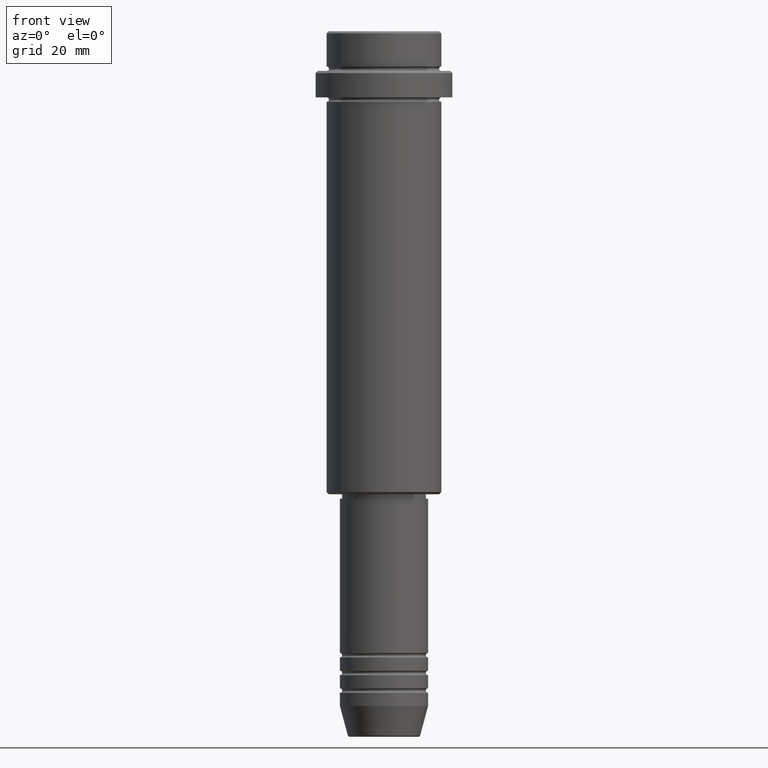
[diagram: clean part render]
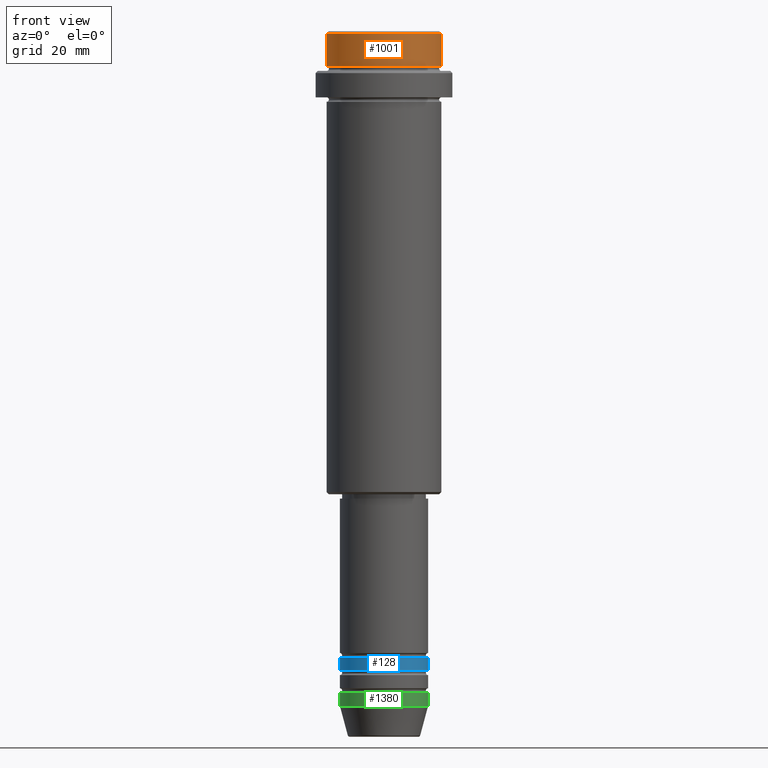
[diagram: same view with three faces highlighted in distinct colors, each labeled with its STEP entity id]
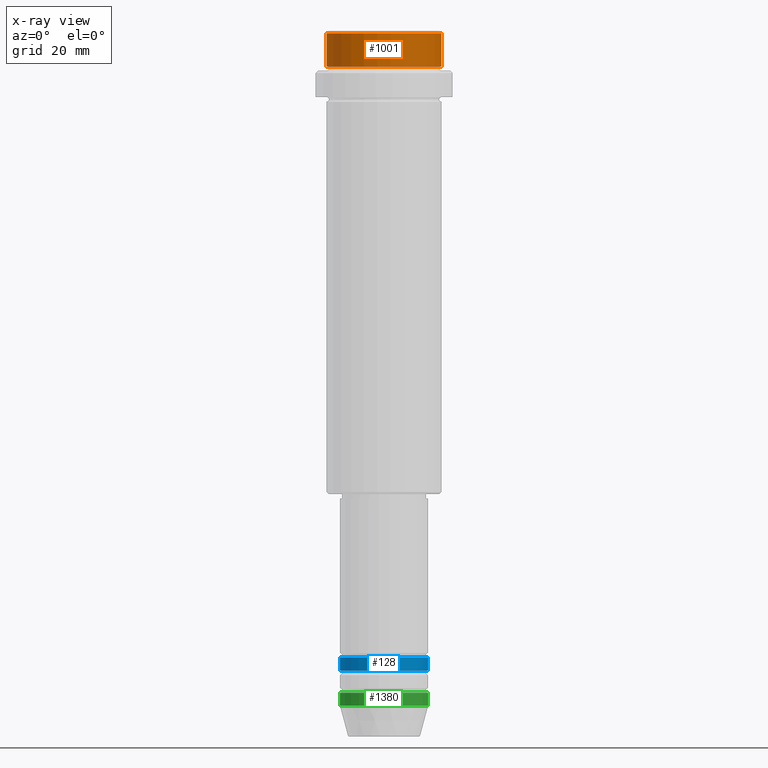
[diagram: x-ray of the same camera — body ghosted, the three highlighted faces saturated]
A machine part, front view with three faces highlighted in distinct colors.
The next image is the same camera in x-ray (body ghosted, the three faces saturated) — at least one of them is partly hidden behind the body in this view.
Their STEP definitions:

[orange] entity #1001 — the highlighted cylindrical surface (partial cylindrical patch) has radius 13 mm, axis along (-0, -0, 1).
#119 = EDGE_LOOP ( 'NONE', ( #654, #1260, #299, #1121 ) ) ;
#152 = DIRECTION ( 'NONE',  ( -0.000000000000000000, -0.000000000000000000, 1.000000000000000000 ) ) ;
#196 = CARTESIAN_POINT ( 'NONE',  ( -12.99999999999999822, 1.592040838891558898E-15, 0.000000000000000000 ) ) ;
#199 = CARTESIAN_POINT ( 'NONE',  ( -12.99999999999999822, 1.592040838891558898E-15, -7.999999999999998224 ) ) ;
#273 = VECTOR ( 'NONE', #615, 1000.000000000000000 ) ;
#287 = DIRECTION ( 'NONE',  ( 1.000000000000000000, 0.000000000000000000, 0.000000000000000000 ) ) ;
#299 = ORIENTED_EDGE ( 'NONE', *, *, #395, .T. ) ;
#330 = EDGE_CURVE ( 'NONE', #972, #341, #732, .T. ) ;
#341 = VERTEX_POINT ( 'NONE', #620 ) ;
#365 = CIRCLE ( 'NONE', #506, 12.99999999999999822 ) ;
#395 = EDGE_CURVE ( 'NONE', #1152, #545, #887, .T. ) ;
#478 = AXIS2_PLACEMENT_3D ( 'NONE', #507, #941, #945 ) ;
#489 = EDGE_CURVE ( 'NONE', #545, #341, #1345, .T. ) ;
#506 = AXIS2_PLACEMENT_3D ( 'NONE', #962, #1290, #951 ) ;
#507 = CARTESIAN_POINT ( 'NONE',  ( 0.000000000000000000, 0.000000000000000000, 0.000000000000000000 ) ) ;
#545 = VERTEX_POINT ( 'NONE', #1002 ) ;
#563 = CARTESIAN_POINT ( 'NONE',  ( 0.000000000000000000, 0.000000000000000000, -0.4999999999999622524 ) ) ;
#615 = DIRECTION ( 'NONE',  ( -0.000000000000000000, -0.000000000000000000, 1.000000000000000000 ) ) ;
#620 = CARTESIAN_POINT ( 'NONE',  ( -12.99999999999999822, 1.592040838891558898E-15, -0.4999999999999622524 ) ) ;
#654 = ORIENTED_EDGE ( 'NONE', *, *, #330, .F. ) ;
#732 = LINE ( 'NONE', #196, #273 ) ;
#746 = CYLINDRICAL_SURFACE ( 'NONE', #478, 12.99999999999999822 ) ;
#848 = FACE_OUTER_BOUND ( 'NONE', #119, .T. ) ;
#887 = LINE ( 'NONE', #1337, #1104 ) ;
#894 = DIRECTION ( 'NONE',  ( 0.000000000000000000, 0.000000000000000000, -1.000000000000000000 ) ) ;
#941 = DIRECTION ( 'NONE',  ( -0.000000000000000000, -0.000000000000000000, 1.000000000000000000 ) ) ;
#945 = DIRECTION ( 'NONE',  ( 1.000000000000000000, 0.000000000000000000, 0.000000000000000000 ) ) ;
#951 = DIRECTION ( 'NONE',  ( 1.000000000000000000, 0.000000000000000000, 0.000000000000000000 ) ) ;
#962 = CARTESIAN_POINT ( 'NONE',  ( 0.000000000000000000, 0.000000000000000000, -7.999999999999998224 ) ) ;
#972 = VERTEX_POINT ( 'NONE', #199 ) ;
#1001 = ADVANCED_FACE ( 'NONE', ( #848 ), #746, .T. ) ;
#1002 = CARTESIAN_POINT ( 'NONE',  ( 12.99999999999999822, 0.000000000000000000, -0.4999999999999622524 ) ) ;
#1104 = VECTOR ( 'NONE', #152, 1000.000000000000000 ) ;
#1121 = ORIENTED_EDGE ( 'NONE', *, *, #489, .T. ) ;
#1134 = AXIS2_PLACEMENT_3D ( 'NONE', #563, #894, #287 ) ;
#1152 = VERTEX_POINT ( 'NONE', #1219 ) ;
#1219 = CARTESIAN_POINT ( 'NONE',  ( 12.99999999999999822, 0.000000000000000000, -7.999999999999998224 ) ) ;
#1260 = ORIENTED_EDGE ( 'NONE', *, *, #1342, .T. ) ;
#1290 = DIRECTION ( 'NONE',  ( -0.000000000000000000, -0.000000000000000000, 1.000000000000000000 ) ) ;
#1337 = CARTESIAN_POINT ( 'NONE',  ( 12.99999999999999822, 0.000000000000000000, 0.000000000000000000 ) ) ;
#1342 = EDGE_CURVE ( 'NONE', #972, #1152, #365, .T. ) ;
#1345 = CIRCLE ( 'NONE', #1134, 12.99999999999999822 ) ;

[blue] entity #128 — the highlighted cylindrical surface (partial cylindrical patch) has radius 10 mm, axis along (-0, -0, 1).
#6 = ORIENTED_EDGE ( 'NONE', *, *, #1090, .T. ) ;
#15 = DIRECTION ( 'NONE',  ( -0.000000000000000000, -0.000000000000000000, 1.000000000000000000 ) ) ;
#30 = ORIENTED_EDGE ( 'NONE', *, *, #505, .F. ) ;
#77 = CARTESIAN_POINT ( 'NONE',  ( 10.00000000000000000, 0.000000000000000000, -141.9999999999999147 ) ) ;
#78 = EDGE_CURVE ( 'NONE', #270, #712, #1360, .T. ) ;
#90 = AXIS2_PLACEMENT_3D ( 'NONE', #752, #1194, #219 ) ;
#106 = DIRECTION ( 'NONE',  ( 1.000000000000000000, 0.000000000000000000, 0.000000000000000000 ) ) ;
#122 = ORIENTED_EDGE ( 'NONE', *, *, #78, .F. ) ;
#128 = ADVANCED_FACE ( 'NONE', ( #1109 ), #812, .T. ) ;
#219 = DIRECTION ( 'NONE',  ( 1.000000000000000000, 0.000000000000000000, 0.000000000000000000 ) ) ;
#226 = DIRECTION ( 'NONE',  ( -0.000000000000000000, -0.000000000000000000, 1.000000000000000000 ) ) ;
#248 = VECTOR ( 'NONE', #702, 1000.000000000000000 ) ;
#259 = ORIENTED_EDGE ( 'NONE', *, *, #577, .T. ) ;
#270 = VERTEX_POINT ( 'NONE', #721 ) ;
#386 = CARTESIAN_POINT ( 'NONE',  ( 10.00000000000000000, 0.000000000000000000, -144.9999999999999147 ) ) ;
#462 = CARTESIAN_POINT ( 'NONE',  ( 10.00000000000000000, 0.000000000000000000, 0.000000000000000000 ) ) ;
#474 = CIRCLE ( 'NONE', #90, 10.00000000000000000 ) ;
#505 = EDGE_CURVE ( 'NONE', #712, #1339, #851, .T. ) ;
#532 = AXIS2_PLACEMENT_3D ( 'NONE', #896, #1338, #787 ) ;
#577 = EDGE_CURVE ( 'NONE', #270, #659, #474, .T. ) ;
#659 = VERTEX_POINT ( 'NONE', #386 ) ;
#702 = DIRECTION ( 'NONE',  ( -0.000000000000000000, -0.000000000000000000, 1.000000000000000000 ) ) ;
#712 = VERTEX_POINT ( 'NONE', #1296 ) ;
#721 = CARTESIAN_POINT ( 'NONE',  ( -10.00000000000000000, 1.224646799147353256E-15, -144.9999999999999147 ) ) ;
#752 = CARTESIAN_POINT ( 'NONE',  ( 0.000000000000000000, 0.000000000000000000, -144.9999999999999147 ) ) ;
#780 = LINE ( 'NONE', #462, #1066 ) ;
#787 = DIRECTION ( 'NONE',  ( 1.000000000000000000, 0.000000000000000000, 0.000000000000000000 ) ) ;
#812 = CYLINDRICAL_SURFACE ( 'NONE', #532, 10.00000000000000000 ) ;
#851 = CIRCLE ( 'NONE', #1222, 10.00000000000000000 ) ;
#896 = CARTESIAN_POINT ( 'NONE',  ( 0.000000000000000000, 0.000000000000000000, 0.000000000000000000 ) ) ;
#1066 = VECTOR ( 'NONE', #15, 1000.000000000000000 ) ;
#1090 = EDGE_CURVE ( 'NONE', #659, #1339, #780, .T. ) ;
#1109 = FACE_OUTER_BOUND ( 'NONE', #1310, .T. ) ;
#1194 = DIRECTION ( 'NONE',  ( -0.000000000000000000, -0.000000000000000000, 1.000000000000000000 ) ) ;
#1217 = CARTESIAN_POINT ( 'NONE',  ( -10.00000000000000000, 1.224646799147353256E-15, 0.000000000000000000 ) ) ;
#1222 = AXIS2_PLACEMENT_3D ( 'NONE', #1312, #226, #106 ) ;
#1296 = CARTESIAN_POINT ( 'NONE',  ( -10.00000000000000000, 1.224646799147353256E-15, -141.9999999999999147 ) ) ;
#1310 = EDGE_LOOP ( 'NONE', ( #122, #259, #6, #30 ) ) ;
#1312 = CARTESIAN_POINT ( 'NONE',  ( 0.000000000000000000, 0.000000000000000000, -141.9999999999999147 ) ) ;
#1338 = DIRECTION ( 'NONE',  ( -0.000000000000000000, -0.000000000000000000, 1.000000000000000000 ) ) ;
#1339 = VERTEX_POINT ( 'NONE', #77 ) ;
#1360 = LINE ( 'NONE', #1217, #248 ) ;

[green] entity #1380 — the highlighted cylindrical surface (partial cylindrical patch) has radius 10 mm, axis along (-0, -0, 1).
#54 = CARTESIAN_POINT ( 'NONE',  ( 0.000000000000000000, 0.000000000000000000, 0.000000000000000000 ) ) ;
#62 = ORIENTED_EDGE ( 'NONE', *, *, #910, .F. ) ;
#66 = VECTOR ( 'NONE', #1202, 1000.000000000000000 ) ;
#105 = VERTEX_POINT ( 'NONE', #255 ) ;
#228 = CIRCLE ( 'NONE', #402, 10.00000000000000000 ) ;
#250 = ORIENTED_EDGE ( 'NONE', *, *, #404, .F. ) ;
#255 = CARTESIAN_POINT ( 'NONE',  ( 10.00000000000000000, 0.000000000000000000, -153.0000000000000000 ) ) ;
#265 = DIRECTION ( 'NONE',  ( 1.000000000000000000, 0.000000000000000000, 0.000000000000000000 ) ) ;
#332 = VECTOR ( 'NONE', #480, 1000.000000000000000 ) ;
#351 = EDGE_CURVE ( 'NONE', #105, #924, #760, .T. ) ;
#356 = VERTEX_POINT ( 'NONE', #1092 ) ;
#402 = AXIS2_PLACEMENT_3D ( 'NONE', #925, #461, #265 ) ;
#404 = EDGE_CURVE ( 'NONE', #356, #1138, #701, .T. ) ;
#408 = CYLINDRICAL_SURFACE ( 'NONE', #821, 10.00000000000000000 ) ;
#413 = DIRECTION ( 'NONE',  ( 1.000000000000000000, 0.000000000000000000, 0.000000000000000000 ) ) ;
#439 = EDGE_CURVE ( 'NONE', #356, #105, #556, .T. ) ;
#461 = DIRECTION ( 'NONE',  ( -0.000000000000000000, -0.000000000000000000, 1.000000000000000000 ) ) ;
#480 = DIRECTION ( 'NONE',  ( -0.000000000000000000, -0.000000000000000000, 1.000000000000000000 ) ) ;
#556 = CIRCLE ( 'NONE', #989, 10.00000000000000000 ) ;
#580 = CARTESIAN_POINT ( 'NONE',  ( 0.000000000000000000, 0.000000000000000000, -153.0000000000000000 ) ) ;
#690 = CARTESIAN_POINT ( 'NONE',  ( 10.00000000000000000, 0.000000000000000000, -150.0000000000000000 ) ) ;
#701 = LINE ( 'NONE', #1005, #332 ) ;
#722 = CARTESIAN_POINT ( 'NONE',  ( -10.00000000000000000, 1.224646799147353256E-15, -150.0000000000000000 ) ) ;
#748 = CARTESIAN_POINT ( 'NONE',  ( 10.00000000000000000, 0.000000000000000000, 0.000000000000000000 ) ) ;
#760 = LINE ( 'NONE', #748, #66 ) ;
#821 = AXIS2_PLACEMENT_3D ( 'NONE', #54, #944, #413 ) ;
#842 = EDGE_LOOP ( 'NONE', ( #250, #1265, #1401, #62 ) ) ;
#910 = EDGE_CURVE ( 'NONE', #1138, #924, #228, .T. ) ;
#924 = VERTEX_POINT ( 'NONE', #690 ) ;
#925 = CARTESIAN_POINT ( 'NONE',  ( 0.000000000000000000, 0.000000000000000000, -150.0000000000000000 ) ) ;
#944 = DIRECTION ( 'NONE',  ( -0.000000000000000000, -0.000000000000000000, 1.000000000000000000 ) ) ;
#989 = AXIS2_PLACEMENT_3D ( 'NONE', #580, #1116, #1024 ) ;
#1005 = CARTESIAN_POINT ( 'NONE',  ( -10.00000000000000000, 1.224646799147353256E-15, 0.000000000000000000 ) ) ;
#1024 = DIRECTION ( 'NONE',  ( 1.000000000000000000, 0.000000000000000000, 0.000000000000000000 ) ) ;
#1092 = CARTESIAN_POINT ( 'NONE',  ( -10.00000000000000000, 1.224646799147353256E-15, -153.0000000000000000 ) ) ;
#1116 = DIRECTION ( 'NONE',  ( -0.000000000000000000, -0.000000000000000000, 1.000000000000000000 ) ) ;
#1138 = VERTEX_POINT ( 'NONE', #722 ) ;
#1181 = FACE_OUTER_BOUND ( 'NONE', #842, .T. ) ;
#1202 = DIRECTION ( 'NONE',  ( -0.000000000000000000, -0.000000000000000000, 1.000000000000000000 ) ) ;
#1265 = ORIENTED_EDGE ( 'NONE', *, *, #439, .T. ) ;
#1380 = ADVANCED_FACE ( 'NONE', ( #1181 ), #408, .T. ) ;
#1401 = ORIENTED_EDGE ( 'NONE', *, *, #351, .T. ) ;